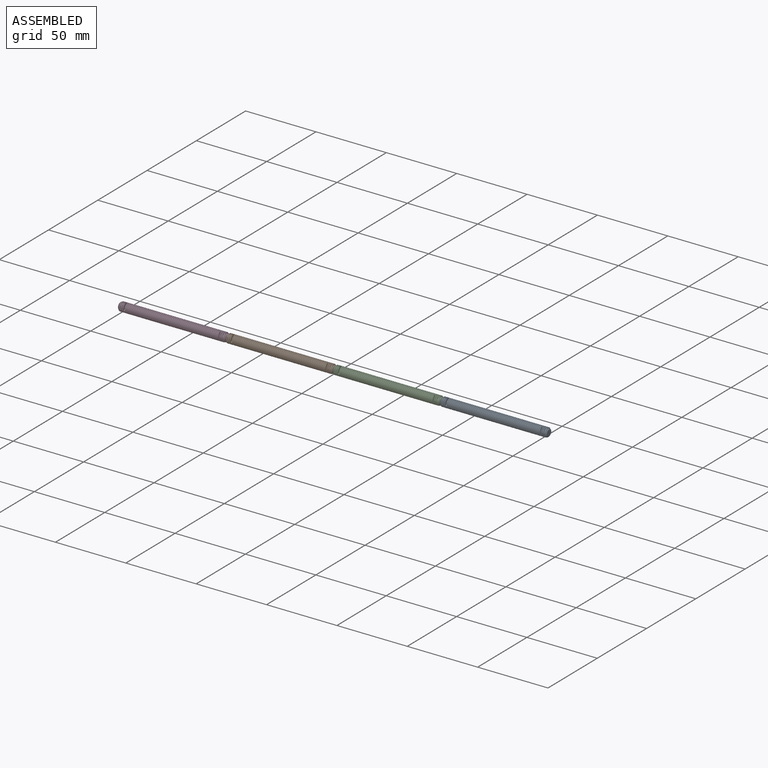
[diagram: assembled view]
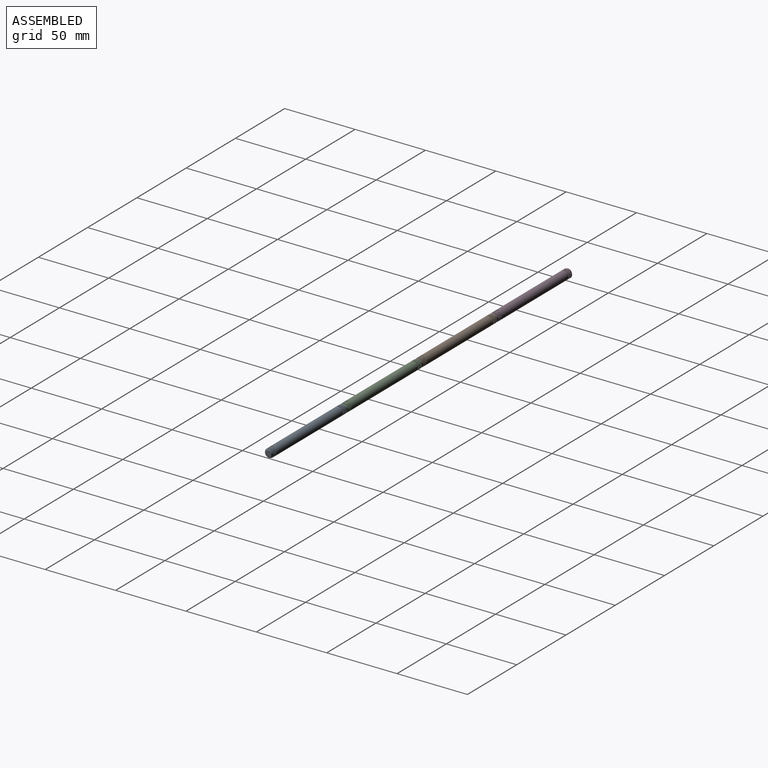
[diagram: assembled view, second angle]
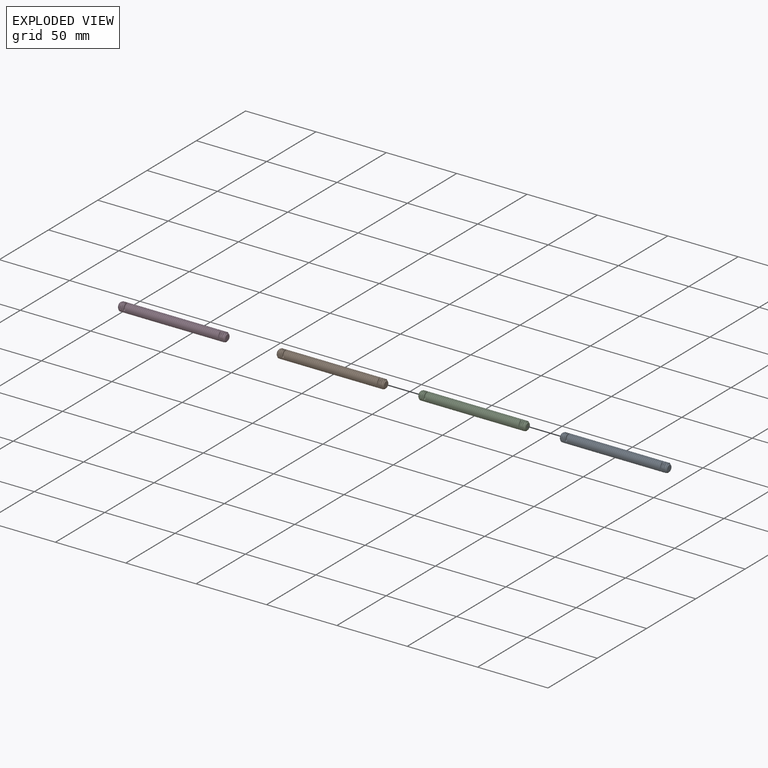
[diagram: exploded view]
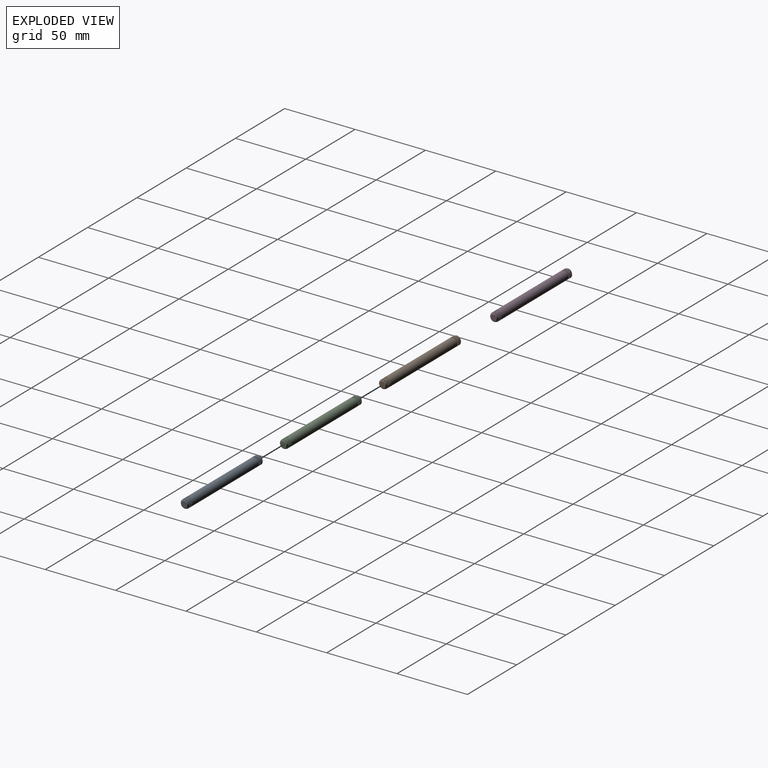
[diagram: exploded view, second angle]
ASSEMBLY  parts=4 mates=4
PART A: 9 faces, bbox 77.2x6.5x7.5 mm
  f0: cylinder r=3.17mm len=74.3mm, axis (1,0,0), area 185.3mm2, adj f1,f3,f6,f8
  f1: cone r=2.22mm half-angle=45deg, axis (-1,0,0), area 12.4mm2, adj f0,f5,f6,f7,f8
  f2: cone r=3.17mm half-angle=45deg, axis (1,0,0), area 11.7mm2, adj f3,f4,f6,f7,f8
  f3: cone r=3.17mm half-angle=45deg, axis (1,0,0), area 0.6mm2, adj f0,f2,f6
  f4: plane 4.45x4.45mm, normal (-1,0,0), area 15.5mm2, adj f2
  f5: plane 4.45x4.45mm, normal (1,0,0), area 15.5mm2, adj f1
  f6: bspline ~77.14x7.49mm, area 971.7mm2, adj f0,f1,f2,f3,f7
  f7: cylinder r=2.35mm len=75.94mm, axis (-1,0,0), area -263mm2, adj f1,f2,f6,f8
  f8: bspline ~76.72x7.49mm, area 979.3mm2, adj f0,f1,f2,f7
PART B: same geometry as A
PART C: same geometry as A
PART D: same geometry as A
PLACE A t=(120.46,24.53,-7.91)mm
PLACE B t=(-31.94,24.53,-7.91)mm
PLACE C t=(44.26,24.53,-7.91)mm
PLACE D t=(-108.14,24.53,-7.91)mm
MATE fastened D.f0 <-> B.f0  axis (1,0,0) through (-70.04,24.53,-7.91)mm
MATE fastened C.f0 <-> A.f0  axis (1,0,0) through (82.36,24.53,-7.91)mm
MATE fastened C.f0 <-> B.f0  axis (-1,0,0) through (6.16,24.53,-7.91)mm
MATE planar B.f0 <-> D.f0  axis (-1,0,0) through (-70.04,24.53,-7.91)mm
